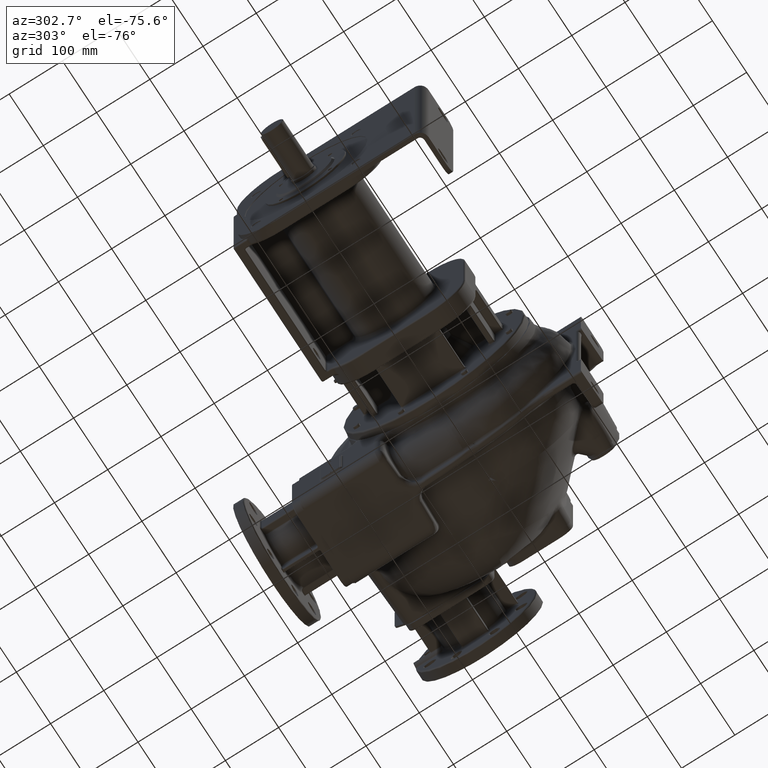
[diagram: clean part render]
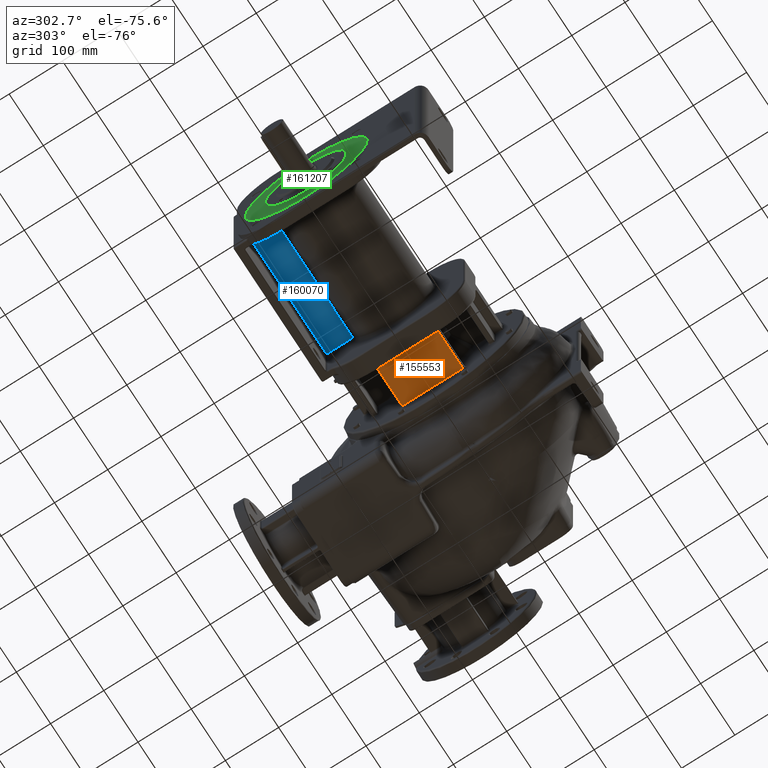
[diagram: same view with three faces highlighted in distinct colors, each labeled with its STEP entity id]
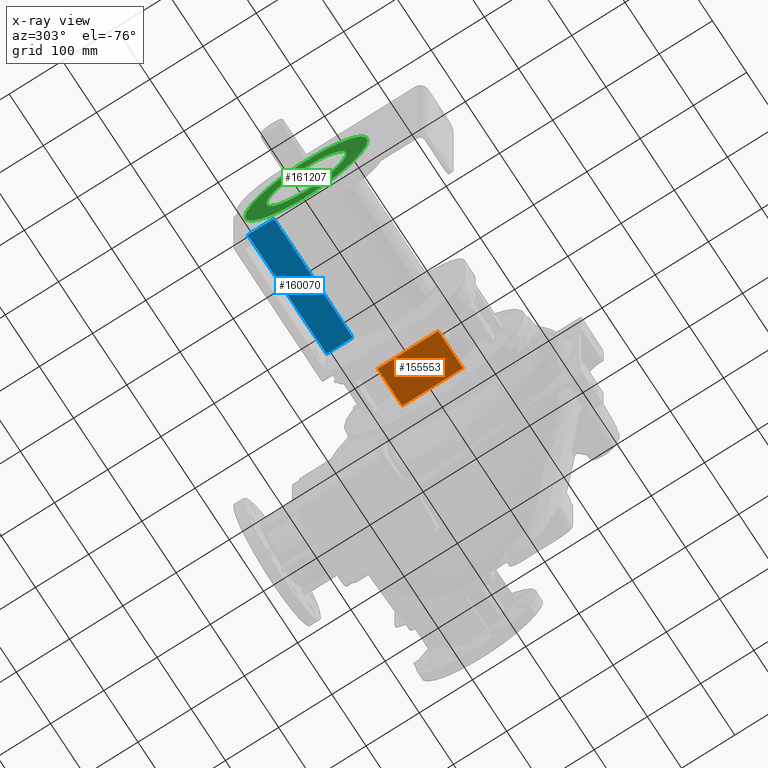
[diagram: x-ray of the same camera — body ghosted, the three highlighted faces saturated]
A machine part, auxiliary view with three faces highlighted in distinct colors.
The next image is the same camera in x-ray (body ghosted, the three faces saturated) — at least one of them is partly hidden behind the body in this view.
Their STEP definitions:

[orange] entity #155553 — the highlighted planar face has unit normal (0, 0, -1).
#58488=DIRECTION('',(0.E0,-1.E0,0.E0));
#58489=VECTOR('',#58488,1.14E2);
#58490=CARTESIAN_POINT('',(-9.75E1,2.77E2,-1.15E2));
#58491=LINE('',#58490,#58489);
#58492=DIRECTION('',(-1.E0,0.E0,0.E0));
#58493=VECTOR('',#58492,7.2E1);
#58494=CARTESIAN_POINT('',(-9.75E1,2.77E2,-1.15E2));
#58495=LINE('',#58494,#58493);
#58496=DIRECTION('',(0.E0,1.E0,0.E0));
#58497=VECTOR('',#58496,1.14E2);
#58498=CARTESIAN_POINT('',(-1.695E2,1.63E2,-1.15E2));
#58499=LINE('',#58498,#58497);
#58500=DIRECTION('',(-1.E0,0.E0,0.E0));
#58501=VECTOR('',#58500,7.2E1);
#58502=CARTESIAN_POINT('',(-9.75E1,1.63E2,-1.15E2));
#58503=LINE('',#58502,#58501);
#68506=CARTESIAN_POINT('',(-9.75E1,1.63E2,-1.15E2));
#68507=VERTEX_POINT('',#68506);
#68510=CARTESIAN_POINT('',(-9.75E1,2.77E2,-1.15E2));
#68511=VERTEX_POINT('',#68510);
#68644=CARTESIAN_POINT('',(-1.695E2,1.63E2,-1.15E2));
#68645=VERTEX_POINT('',#68644);
#68648=CARTESIAN_POINT('',(-1.695E2,2.77E2,-1.15E2));
#68649=VERTEX_POINT('',#68648);
#155541=CARTESIAN_POINT('',(-1.765E2,1.6E2,-1.15E2));
#155542=DIRECTION('',(0.E0,0.E0,-1.E0));
#155543=DIRECTION('',(0.E0,1.E0,0.E0));
#155544=AXIS2_PLACEMENT_3D('',#155541,#155542,#155543);
#155545=PLANE('',#155544);
#155546=ORIENTED_EDGE('',*,*,#155509,.F.);
#155547=ORIENTED_EDGE('',*,*,#155536,.T.);
#155548=ORIENTED_EDGE('',*,*,#155302,.F.);
#155550=ORIENTED_EDGE('',*,*,#155549,.F.);
#155551=EDGE_LOOP('',(#155546,#155547,#155548,#155550));
#155552=FACE_OUTER_BOUND('',#155551,.F.);
#155553=ADVANCED_FACE('',(#155552),#155545,.T.);
#155302=EDGE_CURVE('',#68645,#68649,#58499,.T.);
#155509=EDGE_CURVE('',#68511,#68507,#58491,.T.);
#155536=EDGE_CURVE('',#68511,#68649,#58495,.T.);
#155549=EDGE_CURVE('',#68507,#68645,#58503,.T.);

[blue] entity #160070 — the highlighted planar face has unit normal (0, 0, -1).
#60300=DIRECTION('',(0.E0,-1.E0,0.E0));
#60301=VECTOR('',#60300,4.639602987445E1);
#60302=CARTESIAN_POINT('',(-2.095E2,3.47E2,-5.E0));
#60303=LINE('',#60302,#60301);
#60304=DIRECTION('',(1.E0,0.E0,0.E0));
#60305=VECTOR('',#60304,2.31E2);
#60306=CARTESIAN_POINT('',(-4.405E2,3.47E2,-5.E0));
#60307=LINE('',#60306,#60305);
#60308=DIRECTION('',(0.E0,1.E0,0.E0));
#60309=VECTOR('',#60308,4.639602987445E1);
#60310=CARTESIAN_POINT('',(-4.405E2,3.006039701255E2,-5.E0));
#60311=LINE('',#60310,#60309);
#60312=CARTESIAN_POINT('',(-4.375E2,2.975886589651E2,-5.E0));
#60313=CARTESIAN_POINT('',(-4.378228996264E2,2.975886593309E2,-5.E0));
#60314=CARTESIAN_POINT('',(-4.384346796951E2,2.976878608485E2,-5.E0));
#60315=CARTESIAN_POINT('',(-4.392896248288E2,2.981215682394E2,-5.E0));
#60316=CARTESIAN_POINT('',(-4.399641317048E2,2.987969636176E2,-5.E0));
#60317=CARTESIAN_POINT('',(-4.403999394224E2,2.996587183432E2,-5.E0));
#60318=CARTESIAN_POINT('',(-4.404999996443E2,3.002770961710E2,-5.E0));
#60319=CARTESIAN_POINT('',(-4.405E2,3.006039701255E2,-5.E0));
#60321=DIRECTION('',(-1.E0,0.E0,0.E0));
#60322=VECTOR('',#60321,2.25E2);
#60323=CARTESIAN_POINT('',(-2.125E2,2.975886589651E2,-5.E0));
#60324=LINE('',#60323,#60322);
#60325=CARTESIAN_POINT('',(-2.095E2,3.006039701255E2,-5.E0));
#60326=CARTESIAN_POINT('',(-2.095000003606E2,3.002770960790E2,-5.E0));
#60327=CARTESIAN_POINT('',(-2.096000606450E2,2.996587181206E2,-5.E0));
#60328=CARTESIAN_POINT('',(-2.100358683899E2,2.987969634953E2,-5.E0));
#60329=CARTESIAN_POINT('',(-2.107103753421E2,2.981215681016E2,-5.E0));
#60330=CARTESIAN_POINT('',(-2.115653205429E2,2.976878607826E2,-5.E0));
#60331=CARTESIAN_POINT('',(-2.121771004738E2,2.975886593259E2,-5.E0));
#60332=CARTESIAN_POINT('',(-2.125E2,2.975886589651E2,-5.E0));
#69140=CARTESIAN_POINT('',(-2.095E2,3.47E2,-5.E0));
#69141=CARTESIAN_POINT('',(-2.095E2,3.006039701255E2,-5.E0));
#69142=VERTEX_POINT('',#69140);
#69143=VERTEX_POINT('',#69141);
#69147=CARTESIAN_POINT('',(-2.125E2,2.975886589651E2,-5.E0));
#69148=CARTESIAN_POINT('',(-4.375E2,2.975886589651E2,-5.E0));
#69149=VERTEX_POINT('',#69147);
#69150=VERTEX_POINT('',#69148);
#69154=CARTESIAN_POINT('',(-4.405E2,3.006039701255E2,-5.E0));
#69155=CARTESIAN_POINT('',(-4.405E2,3.47E2,-5.E0));
#69156=VERTEX_POINT('',#69154);
#69157=VERTEX_POINT('',#69155);
#160053=CARTESIAN_POINT('',(-1.945E2,3.65E2,-5.E0));
#160054=DIRECTION('',(0.E0,0.E0,-1.E0));
#160055=DIRECTION('',(-1.E0,0.E0,0.E0));
#160056=AXIS2_PLACEMENT_3D('',#160053,#160054,#160055);
#160057=PLANE('',#160056);
#160058=ORIENTED_EDGE('',*,*,#158790,.F.);
#160060=ORIENTED_EDGE('',*,*,#160059,.F.);
#160062=ORIENTED_EDGE('',*,*,#160061,.F.);
#160064=ORIENTED_EDGE('',*,*,#160063,.F.);
#160066=ORIENTED_EDGE('',*,*,#160065,.F.);
#160067=ORIENTED_EDGE('',*,*,#160046,.F.);
#160068=EDGE_LOOP('',(#160058,#160060,#160062,#160064,#160066,#160067));
#160069=FACE_OUTER_BOUND('',#160068,.F.);
#160070=ADVANCED_FACE('',(#160069),#160057,.T.);
#60320=B_SPLINE_CURVE_WITH_KNOTS('',3,(#60312,#60313,#60314,#60315,#60316,
#60317,#60318,#60319),.UNSPECIFIED.,.F.,.F.,(4,1,1,1,1,4),(0.E0,2.E-1,4.E-1,
6.E-1,8.E-1,1.E0),.UNSPECIFIED.);
#60333=B_SPLINE_CURVE_WITH_KNOTS('',3,(#60325,#60326,#60327,#60328,#60329,
#60330,#60331,#60332),.UNSPECIFIED.,.F.,.F.,(4,1,1,1,1,4),(0.E0,2.E-1,4.E-1,
6.E-1,8.E-1,1.E0),.UNSPECIFIED.);
#158790=EDGE_CURVE('',#69142,#69143,#60303,.T.);
#160046=EDGE_CURVE('',#69143,#69149,#60333,.T.);
#160059=EDGE_CURVE('',#69157,#69142,#60307,.T.);
#160061=EDGE_CURVE('',#69156,#69157,#60311,.T.);
#160063=EDGE_CURVE('',#69150,#69156,#60320,.T.);
#160065=EDGE_CURVE('',#69149,#69150,#60324,.T.);

[green] entity #161207 — the highlighted planar face has unit normal (-1, 0, 0).
#60963=CARTESIAN_POINT('',(-4.665E2,2.2E2,0.E0));
#60964=DIRECTION('',(-1.E0,0.E0,0.E0));
#60965=DIRECTION('',(0.E0,-1.E0,0.E0));
#60966=AXIS2_PLACEMENT_3D('',#60963,#60964,#60965);
#60968=CARTESIAN_POINT('',(-4.665E2,2.2E2,0.E0));
#60969=DIRECTION('',(-1.E0,0.E0,0.E0));
#60970=DIRECTION('',(0.E0,1.E0,0.E0));
#60971=AXIS2_PLACEMENT_3D('',#60968,#60969,#60970);
#60973=CARTESIAN_POINT('',(-4.665E2,2.2E2,0.E0));
#60974=DIRECTION('',(-1.E0,0.E0,0.E0));
#60975=DIRECTION('',(0.E0,0.E0,1.E0));
#60976=AXIS2_PLACEMENT_3D('',#60973,#60974,#60975);
#60978=CARTESIAN_POINT('',(-4.665E2,2.2E2,0.E0));
#60979=DIRECTION('',(-1.E0,0.E0,0.E0));
#60980=DIRECTION('',(0.E0,0.E0,-1.E0));
#60981=AXIS2_PLACEMENT_3D('',#60978,#60979,#60980);
#69379=CARTESIAN_POINT('',(-4.665E2,2.2E2,7.5E1));
#69380=CARTESIAN_POINT('',(-4.665E2,2.2E2,-7.5E1));
#69381=VERTEX_POINT('',#69379);
#69382=VERTEX_POINT('',#69380);
#69503=CARTESIAN_POINT('',(-4.665E2,1.048E2,0.E0));
#69504=CARTESIAN_POINT('',(-4.665E2,3.352E2,0.E0));
#69505=VERTEX_POINT('',#69503);
#69506=VERTEX_POINT('',#69504);
#161191=CARTESIAN_POINT('',(-4.665E2,2.2E2,0.E0));
#161192=DIRECTION('',(-1.E0,0.E0,0.E0));
#161193=DIRECTION('',(0.E0,-1.E0,0.E0));
#161194=AXIS2_PLACEMENT_3D('',#161191,#161192,#161193);
#161195=PLANE('',#161194);
#161196=ORIENTED_EDGE('',*,*,#161181,.F.);
#161198=ORIENTED_EDGE('',*,*,#161197,.F.);
#161199=EDGE_LOOP('',(#161196,#161198));
#161200=FACE_OUTER_BOUND('',#161199,.F.);
#161202=ORIENTED_EDGE('',*,*,#161201,.T.);
#161204=ORIENTED_EDGE('',*,*,#161203,.T.);
#161205=EDGE_LOOP('',(#161202,#161204));
#161206=FACE_BOUND('',#161205,.F.);
#161207=ADVANCED_FACE('',(#161200,#161206),#161195,.T.);
#60967=CIRCLE('',#60966,1.152E2);
#60972=CIRCLE('',#60971,1.152E2);
#60977=CIRCLE('',#60976,7.5E1);
#60982=CIRCLE('',#60981,7.5E1);
#161181=EDGE_CURVE('',#69505,#69506,#60967,.T.);
#161197=EDGE_CURVE('',#69506,#69505,#60972,.T.);
#161201=EDGE_CURVE('',#69381,#69382,#60977,.T.);
#161203=EDGE_CURVE('',#69382,#69381,#60982,.T.);